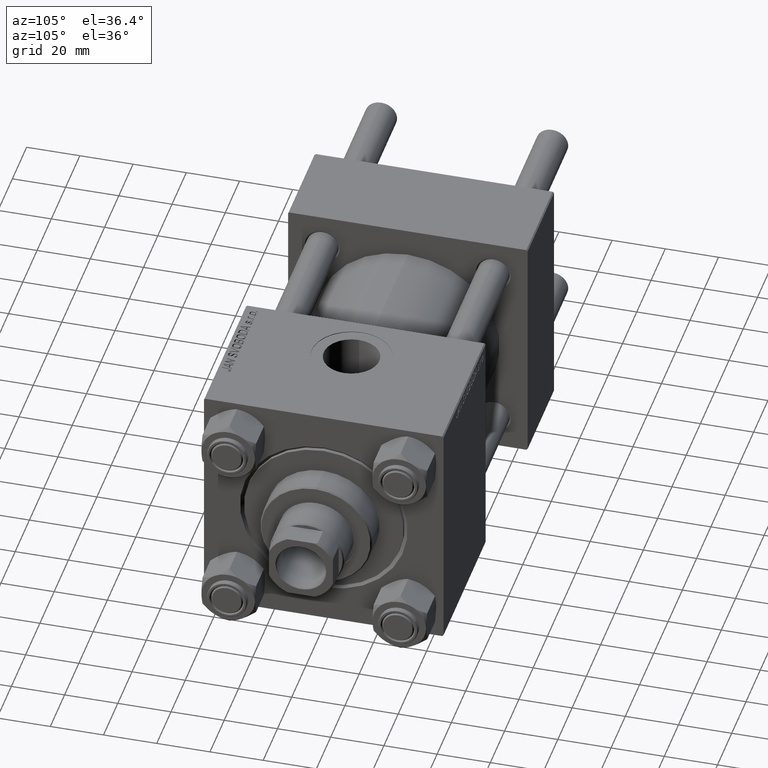
[diagram: clean part render]
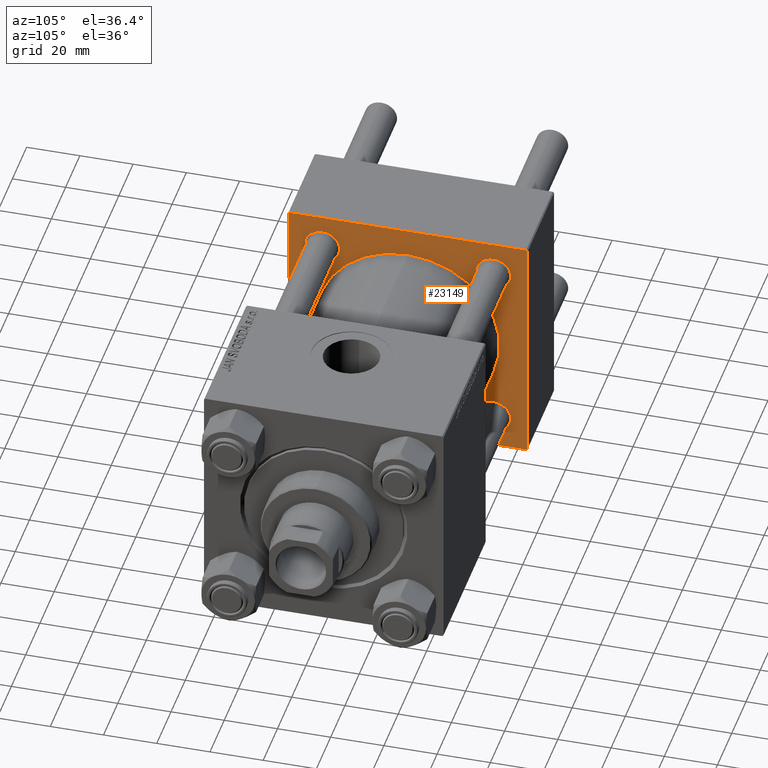
[diagram: same view with one face highlighted and labeled with its STEP entity id]
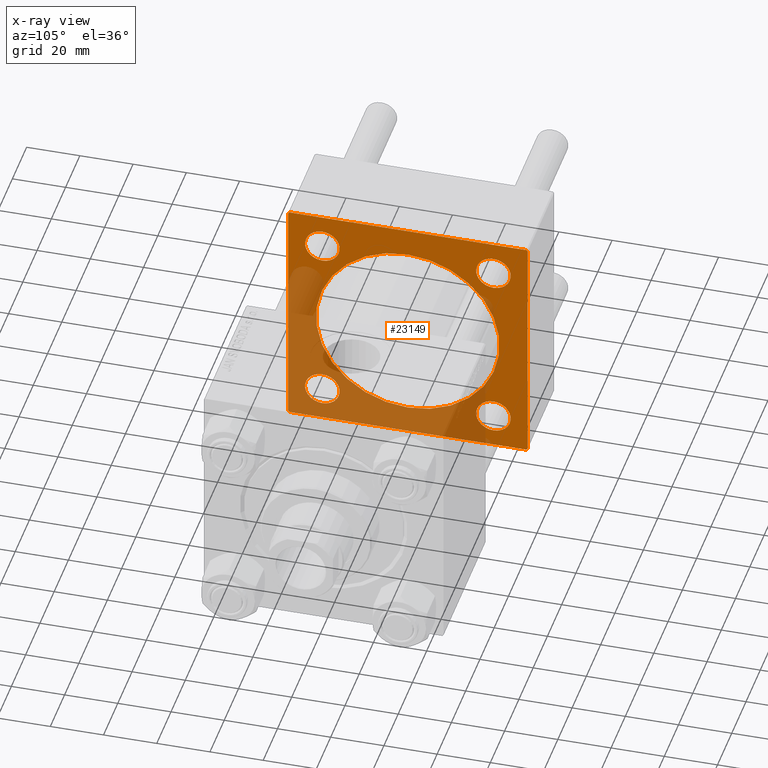
[diagram: x-ray of the same camera — body ghosted, the highlighted face saturated]
A machine part, auxiliary view. The second image highlights one B-rep face of the part: STEP entity #23149.
The next image is the same camera in x-ray: the body ghosted, the highlighted face saturated — about 42% of this face is hidden behind the body in this view.
In plain terms, the highlighted planar face has unit normal (-1, 0, 0).
Its self-contained STEP definition (entity closure, byte-faithful):
#57 = VECTOR ( 'NONE', #20470, 1000.000000000000114 ) ;
#368 = EDGE_CURVE ( 'NONE', #43060, #41321, #9477, .T. ) ;
#841 = AXIS2_PLACEMENT_3D ( 'NONE', #13822, #44040, #8616 ) ;
#1271 = EDGE_CURVE ( 'NONE', #38150, #25807, #36836, .T. ) ;
#1662 = FACE_OUTER_BOUND ( 'NONE', #18423, .T. ) ;
#2229 = CARTESIAN_POINT ( 'NONE',  ( 37.00000000000000000, -45.00000000000000000, -44.49999999999995737 ) ) ;
#2326 = DIRECTION ( 'NONE',  ( 0.000000000000000000, 0.000000000000000000, 1.000000000000000000 ) ) ;
#2340 = CARTESIAN_POINT ( 'NONE',  ( 37.00000000000000000, -45.00000000000000711, 44.49999999999997158 ) ) ;
#2534 = CARTESIAN_POINT ( 'NONE',  ( 37.00000000000000000, -45.00000000000000711, 44.49999999999997158 ) ) ;
#2741 = VECTOR ( 'NONE', #5473, 1000.000000000000000 ) ;
#3002 = CARTESIAN_POINT ( 'NONE',  ( 37.00000000000000000, 44.99999999999998579, 44.50000000000001421 ) ) ;
#3202 = CARTESIAN_POINT ( 'NONE',  ( 37.00000000000000000, 44.49999999999998579, 45.00000000000001421 ) ) ;
#3548 = EDGE_CURVE ( 'NONE', #46313, #11779, #30557, .T. ) ;
#3597 = VERTEX_POINT ( 'NONE', #3002 ) ;
#4540 = CARTESIAN_POINT ( 'NONE',  ( 37.00000000000000000, -32.14999999999997726, 32.15000000000001279 ) ) ;
#4557 = AXIS2_PLACEMENT_3D ( 'NONE', #13242, #28614, #43963 ) ;
#5154 = VERTEX_POINT ( 'NONE', #5969 ) ;
#5304 = EDGE_CURVE ( 'NONE', #3597, #26673, #49041, .T. ) ;
#5473 = DIRECTION ( 'NONE',  ( 0.000000000000000000, -1.000000000000000000, -1.541976423090495387E-16 ) ) ;
#5605 = VERTEX_POINT ( 'NONE', #40704 ) ;
#5752 = ORIENTED_EDGE ( 'NONE', *, *, #29131, .T. ) ;
#5846 = CARTESIAN_POINT ( 'NONE',  ( 37.00000000000000000, 32.14999999999999147, -32.15000000000000568 ) ) ;
#5931 = FACE_BOUND ( 'NONE', #30325, .T. ) ;
#5969 = CARTESIAN_POINT ( 'NONE',  ( 37.00000000000000000, -32.14999999999997726, 38.65000000000004832 ) ) ;
#6114 = EDGE_CURVE ( 'NONE', #31192, #14395, #24962, .T. ) ;
#6874 = ORIENTED_EDGE ( 'NONE', *, *, #6931, .T. ) ;
#6931 = EDGE_CURVE ( 'NONE', #14203, #5605, #40086, .T. ) ;
#8517 = CARTESIAN_POINT ( 'NONE',  ( 37.00000000000000000, -32.14999999999997726, 25.64999999999997726 ) ) ;
#8616 = DIRECTION ( 'NONE',  ( 0.000000000000000000, 0.000000000000000000, 1.000000000000000000 ) ) ;
#8786 = ORIENTED_EDGE ( 'NONE', *, *, #49074, .T. ) ;
#9056 = CARTESIAN_POINT ( 'NONE',  ( 37.00000000000000000, 32.14999999999999147, -25.64999999999997016 ) ) ;
#9477 = CIRCLE ( 'NONE', #14320, 6.500000000000033751 ) ;
#10207 = EDGE_CURVE ( 'NONE', #32655, #18035, #24180, .T. ) ;
#10398 = VECTOR ( 'NONE', #47231, 1000.000000000000000 ) ;
#11358 = DIRECTION ( 'NONE',  ( 0.000000000000000000, 0.000000000000000000, 1.000000000000000000 ) ) ;
#11779 = VERTEX_POINT ( 'NONE', #28662 ) ;
#12236 = LINE ( 'NONE', #20039, #10398 ) ;
#12771 = ORIENTED_EDGE ( 'NONE', *, *, #368, .T. ) ;
#13242 = CARTESIAN_POINT ( 'NONE',  ( 37.00000000000000000, 0.000000000000000000, 0.000000000000000000 ) ) ;
#13288 = CARTESIAN_POINT ( 'NONE',  ( 37.00000000000000000, -32.14999999999997726, -25.64999999999997726 ) ) ;
#13412 = DIRECTION ( 'NONE',  ( 0.000000000000000000, 0.000000000000000000, 1.000000000000000000 ) ) ;
#13656 = DIRECTION ( 'NONE',  ( -1.000000000000000000, 0.000000000000000000, -0.000000000000000000 ) ) ;
#13693 = AXIS2_PLACEMENT_3D ( 'NONE', #18028, #21311, #48251 ) ;
#13822 = CARTESIAN_POINT ( 'NONE',  ( 37.00000000000000000, 32.14999999999999147, -32.15000000000000568 ) ) ;
#14203 = VERTEX_POINT ( 'NONE', #20288 ) ;
#14320 = AXIS2_PLACEMENT_3D ( 'NONE', #20721, #48664, #2326 ) ;
#14395 = VERTEX_POINT ( 'NONE', #9056 ) ;
#14570 = EDGE_CURVE ( 'NONE', #40345, #5154, #19503, .T. ) ;
#15196 = CARTESIAN_POINT ( 'NONE',  ( 37.00000000000000000, 32.14999999999999147, 32.15000000000000568 ) ) ;
#15556 = EDGE_LOOP ( 'NONE', ( #33315, #38633 ) ) ;
#16322 = EDGE_CURVE ( 'NONE', #14395, #31192, #49511, .T. ) ;
#16969 = DIRECTION ( 'NONE',  ( 0.000000000000000000, 0.000000000000000000, 1.000000000000000000 ) ) ;
#17021 = PLANE ( 'NONE',  #4557 ) ;
#17197 = DIRECTION ( 'NONE',  ( 0.000000000000000000, 0.7071067811865474617, -0.7071067811865474617 ) ) ;
#18012 = EDGE_CURVE ( 'NONE', #25807, #28279, #48182, .T. ) ;
#18028 = CARTESIAN_POINT ( 'NONE',  ( 37.00000000000000000, 32.14999999999999147, 32.15000000000000568 ) ) ;
#18035 = VERTEX_POINT ( 'NONE', #44648 ) ;
#18423 = EDGE_LOOP ( 'NONE', ( #18532, #6874, #46929, #38574, #43567, #8786, #27617, #41613 ) ) ;
#18532 = ORIENTED_EDGE ( 'NONE', *, *, #45232, .F. ) ;
#18797 = CARTESIAN_POINT ( 'NONE',  ( 37.00000000000000000, 32.14999999999999147, 38.65000000000004121 ) ) ;
#19055 = DIRECTION ( 'NONE',  ( 0.000000000000000000, -0.7071067811865474617, 0.7071067811865474617 ) ) ;
#19096 = DIRECTION ( 'NONE',  ( 0.000000000000000000, 0.000000000000000000, 1.000000000000000000 ) ) ;
#19503 = CIRCLE ( 'NONE', #28338, 6.500000000000033751 ) ;
#19534 = VECTOR ( 'NONE', #28645, 1000.000000000000000 ) ;
#19864 = LINE ( 'NONE', #35229, #19534 ) ;
#19913 = DIRECTION ( 'NONE',  ( -1.000000000000000000, 0.000000000000000000, -0.000000000000000000 ) ) ;
#20039 = CARTESIAN_POINT ( 'NONE',  ( 37.00000000000000000, 44.99999999999998579, 45.00000000000001421 ) ) ;
#20288 = CARTESIAN_POINT ( 'NONE',  ( 37.00000000000000000, 44.49999999999998579, -44.99999999999998579 ) ) ;
#20470 = DIRECTION ( 'NONE',  ( -0.000000000000000000, 0.7071067811865474617, 0.7071067811865474617 ) ) ;
#20721 = CARTESIAN_POINT ( 'NONE',  ( 37.00000000000000000, -32.14999999999997726, -32.15000000000001279 ) ) ;
#20986 = CARTESIAN_POINT ( 'NONE',  ( 37.00000000000000000, -44.49999999999998579, -45.00000000000000000 ) ) ;
#21003 = DIRECTION ( 'NONE',  ( 1.000000000000000000, -0.000000000000000000, 0.000000000000000000 ) ) ;
#21311 = DIRECTION ( 'NONE',  ( -1.000000000000000000, 0.000000000000000000, -0.000000000000000000 ) ) ;
#21621 = VECTOR ( 'NONE', #36582, 1000.000000000000000 ) ;
#21644 = CARTESIAN_POINT ( 'NONE',  ( 37.00000000000000000, -32.14999999999997726, 32.15000000000001279 ) ) ;
#22226 = VECTOR ( 'NONE', #17197, 1000.000000000000114 ) ;
#23149 = ADVANCED_FACE ( 'NONE', ( #29366, #5931, #25589, #47751, #36167, #1662 ), #17021, .F. ) ;
#23436 = CARTESIAN_POINT ( 'NONE',  ( 37.00000000000000000, -44.49999999999995737, -45.00000000000000000 ) ) ;
#24050 = AXIS2_PLACEMENT_3D ( 'NONE', #4540, #19913, #11358 ) ;
#24180 = CIRCLE ( 'NONE', #13693, 6.500000000000033751 ) ;
#24962 = CIRCLE ( 'NONE', #841, 6.500000000000033751 ) ;
#25108 = ORIENTED_EDGE ( 'NONE', *, *, #14570, .T. ) ;
#25589 = FACE_BOUND ( 'NONE', #28884, .T. ) ;
#25737 = CIRCLE ( 'NONE', #32166, 34.49999999999999289 ) ;
#25807 = VERTEX_POINT ( 'NONE', #2229 ) ;
#26175 = ORIENTED_EDGE ( 'NONE', *, *, #16322, .T. ) ;
#26673 = VERTEX_POINT ( 'NONE', #37260 ) ;
#27617 = ORIENTED_EDGE ( 'NONE', *, *, #1271, .T. ) ;
#27782 = CARTESIAN_POINT ( 'NONE',  ( 37.00000000000000000, 44.99999999999998579, -44.49999999999998579 ) ) ;
#28279 = VERTEX_POINT ( 'NONE', #23436 ) ;
#28338 = AXIS2_PLACEMENT_3D ( 'NONE', #21644, #32243, #48594 ) ;
#28614 = DIRECTION ( 'NONE',  ( -1.000000000000000000, 0.000000000000000000, -0.000000000000000000 ) ) ;
#28645 = DIRECTION ( 'NONE',  ( 0.000000000000000000, -1.000000000000000000, -1.541976423090495633E-16 ) ) ;
#28662 = CARTESIAN_POINT ( 'NONE',  ( 37.00000000000000000, 4.225031457058367344E-15, -34.49999999999999289 ) ) ;
#28717 = EDGE_CURVE ( 'NONE', #18035, #32655, #47372, .T. ) ;
#28884 = EDGE_LOOP ( 'NONE', ( #25108, #5752 ) ) ;
#29131 = EDGE_CURVE ( 'NONE', #5154, #40345, #38529, .T. ) ;
#29366 = FACE_BOUND ( 'NONE', #32959, .T. ) ;
#30010 = EDGE_CURVE ( 'NONE', #3597, #5605, #12236, .T. ) ;
#30208 = CARTESIAN_POINT ( 'NONE',  ( 37.00000000000000000, 0.000000000000000000, 0.000000000000000000 ) ) ;
#30325 = EDGE_LOOP ( 'NONE', ( #36190, #26175 ) ) ;
#30557 = CIRCLE ( 'NONE', #49844, 34.49999999999999289 ) ;
#31073 = DIRECTION ( 'NONE',  ( 0.000000000000000000, 0.000000000000000000, 1.000000000000000000 ) ) ;
#31192 = VERTEX_POINT ( 'NONE', #43848 ) ;
#31533 = VERTEX_POINT ( 'NONE', #48066 ) ;
#31714 = EDGE_CURVE ( 'NONE', #11779, #46313, #25737, .T. ) ;
#31770 = VECTOR ( 'NONE', #38042, 1000.000000000000114 ) ;
#32166 = AXIS2_PLACEMENT_3D ( 'NONE', #46786, #21003, #16969 ) ;
#32243 = DIRECTION ( 'NONE',  ( -1.000000000000000000, 0.000000000000000000, -0.000000000000000000 ) ) ;
#32655 = VERTEX_POINT ( 'NONE', #18797 ) ;
#32823 = CARTESIAN_POINT ( 'NONE',  ( 37.00000000000000000, -45.00000000000000711, 45.00000000000000000 ) ) ;
#32959 = EDGE_LOOP ( 'NONE', ( #12771, #41955 ) ) ;
#33315 = ORIENTED_EDGE ( 'NONE', *, *, #28717, .T. ) ;
#33437 = CARTESIAN_POINT ( 'NONE',  ( 37.00000000000000000, 0.000000000000000000, 34.49999999999999289 ) ) ;
#34567 = DIRECTION ( 'NONE',  ( -1.000000000000000000, 0.000000000000000000, -0.000000000000000000 ) ) ;
#34596 = DIRECTION ( 'NONE',  ( -1.000000000000000000, 0.000000000000000000, -0.000000000000000000 ) ) ;
#35229 = CARTESIAN_POINT ( 'NONE',  ( 37.00000000000000000, 44.99999999999998579, -44.99999999999998579 ) ) ;
#36167 = FACE_BOUND ( 'NONE', #48530, .T. ) ;
#36190 = ORIENTED_EDGE ( 'NONE', *, *, #6114, .T. ) ;
#36582 = DIRECTION ( 'NONE',  ( 0.000000000000000000, 7.709882115452476934E-17, -1.000000000000000000 ) ) ;
#36836 = LINE ( 'NONE', #32823, #21621 ) ;
#37260 = CARTESIAN_POINT ( 'NONE',  ( 37.00000000000000000, 44.49999999999998579, 45.00000000000001421 ) ) ;
#37602 = DIRECTION ( 'NONE',  ( 0.000000000000000000, 0.000000000000000000, 1.000000000000000000 ) ) ;
#38006 = DIRECTION ( 'NONE',  ( 1.000000000000000000, -0.000000000000000000, 0.000000000000000000 ) ) ;
#38042 = DIRECTION ( 'NONE',  ( -0.000000000000000000, -0.7071067811865425767, -0.7071067811865524577 ) ) ;
#38150 = VERTEX_POINT ( 'NONE', #2340 ) ;
#38173 = ORIENTED_EDGE ( 'NONE', *, *, #31714, .F. ) ;
#38529 = CIRCLE ( 'NONE', #24050, 6.500000000000033751 ) ;
#38574 = ORIENTED_EDGE ( 'NONE', *, *, #5304, .T. ) ;
#38633 = ORIENTED_EDGE ( 'NONE', *, *, #10207, .T. ) ;
#39324 = AXIS2_PLACEMENT_3D ( 'NONE', #15196, #34596, #31073 ) ;
#39723 = CIRCLE ( 'NONE', #40552, 6.500000000000033751 ) ;
#39991 = CARTESIAN_POINT ( 'NONE',  ( 37.00000000000000000, 44.99999999999998579, 45.00000000000001421 ) ) ;
#40086 = LINE ( 'NONE', #27782, #57 ) ;
#40345 = VERTEX_POINT ( 'NONE', #8517 ) ;
#40552 = AXIS2_PLACEMENT_3D ( 'NONE', #49437, #34567, #37602 ) ;
#40704 = CARTESIAN_POINT ( 'NONE',  ( 37.00000000000000000, 44.99999999999998579, -44.49999999999995737 ) ) ;
#40732 = CARTESIAN_POINT ( 'NONE',  ( 37.00000000000000000, -32.14999999999997726, -38.65000000000004832 ) ) ;
#41321 = VERTEX_POINT ( 'NONE', #13288 ) ;
#41613 = ORIENTED_EDGE ( 'NONE', *, *, #18012, .T. ) ;
#41955 = ORIENTED_EDGE ( 'NONE', *, *, #48789, .T. ) ;
#43060 = VERTEX_POINT ( 'NONE', #40732 ) ;
#43567 = ORIENTED_EDGE ( 'NONE', *, *, #48502, .T. ) ;
#43848 = CARTESIAN_POINT ( 'NONE',  ( 37.00000000000000000, 32.14999999999999147, -38.65000000000004121 ) ) ;
#43963 = DIRECTION ( 'NONE',  ( -0.000000000000000000, 0.000000000000000000, 1.000000000000000000 ) ) ;
#44040 = DIRECTION ( 'NONE',  ( -1.000000000000000000, 0.000000000000000000, -0.000000000000000000 ) ) ;
#44260 = LINE ( 'NONE', #39991, #2741 ) ;
#44648 = CARTESIAN_POINT ( 'NONE',  ( 37.00000000000000000, 32.14999999999999147, 25.64999999999997016 ) ) ;
#45098 = LINE ( 'NONE', #2534, #31770 ) ;
#45232 = EDGE_CURVE ( 'NONE', #14203, #28279, #19864, .T. ) ;
#46313 = VERTEX_POINT ( 'NONE', #33437 ) ;
#46786 = CARTESIAN_POINT ( 'NONE',  ( 37.00000000000000000, 0.000000000000000000, 0.000000000000000000 ) ) ;
#46929 = ORIENTED_EDGE ( 'NONE', *, *, #30010, .F. ) ;
#47096 = AXIS2_PLACEMENT_3D ( 'NONE', #5846, #13656, #13412 ) ;
#47231 = DIRECTION ( 'NONE',  ( 0.000000000000000000, 0.000000000000000000, -1.000000000000000000 ) ) ;
#47372 = CIRCLE ( 'NONE', #39324, 6.500000000000033751 ) ;
#47460 = VECTOR ( 'NONE', #19055, 1000.000000000000114 ) ;
#47751 = FACE_BOUND ( 'NONE', #15556, .T. ) ;
#48066 = CARTESIAN_POINT ( 'NONE',  ( 37.00000000000000000, -44.49999999999995737, 45.00000000000000000 ) ) ;
#48182 = LINE ( 'NONE', #20986, #22226 ) ;
#48251 = DIRECTION ( 'NONE',  ( 0.000000000000000000, 0.000000000000000000, 1.000000000000000000 ) ) ;
#48502 = EDGE_CURVE ( 'NONE', #26673, #31533, #44260, .T. ) ;
#48530 = EDGE_LOOP ( 'NONE', ( #49779, #38173 ) ) ;
#48594 = DIRECTION ( 'NONE',  ( 0.000000000000000000, 0.000000000000000000, 1.000000000000000000 ) ) ;
#48664 = DIRECTION ( 'NONE',  ( -1.000000000000000000, 0.000000000000000000, -0.000000000000000000 ) ) ;
#48789 = EDGE_CURVE ( 'NONE', #41321, #43060, #39723, .T. ) ;
#49041 = LINE ( 'NONE', #3202, #47460 ) ;
#49074 = EDGE_CURVE ( 'NONE', #31533, #38150, #45098, .T. ) ;
#49437 = CARTESIAN_POINT ( 'NONE',  ( 37.00000000000000000, -32.14999999999997726, -32.15000000000001279 ) ) ;
#49511 = CIRCLE ( 'NONE', #47096, 6.500000000000033751 ) ;
#49779 = ORIENTED_EDGE ( 'NONE', *, *, #3548, .F. ) ;
#49844 = AXIS2_PLACEMENT_3D ( 'NONE', #30208, #38006, #19096 ) ;